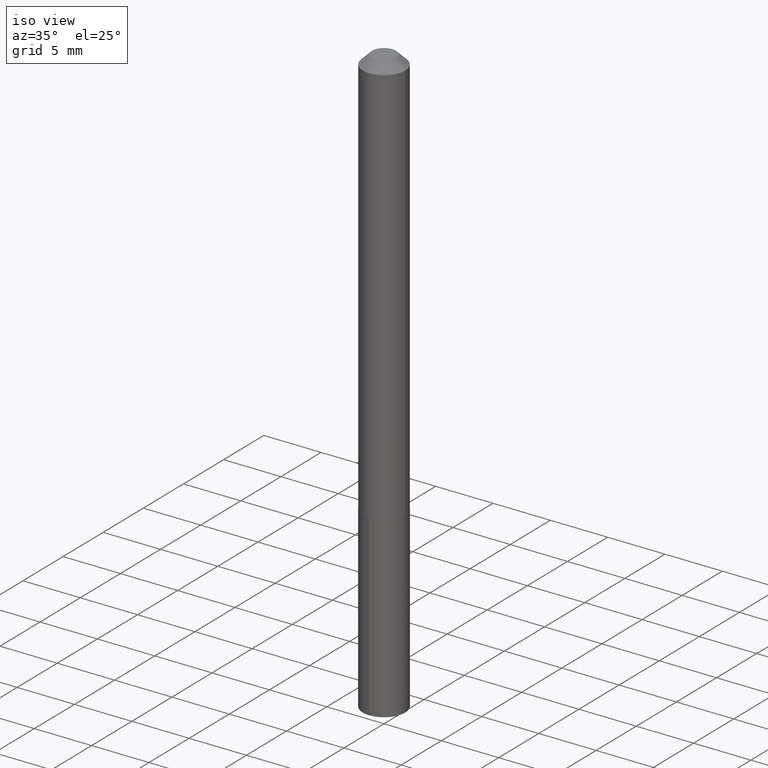
[diagram: clean part render]
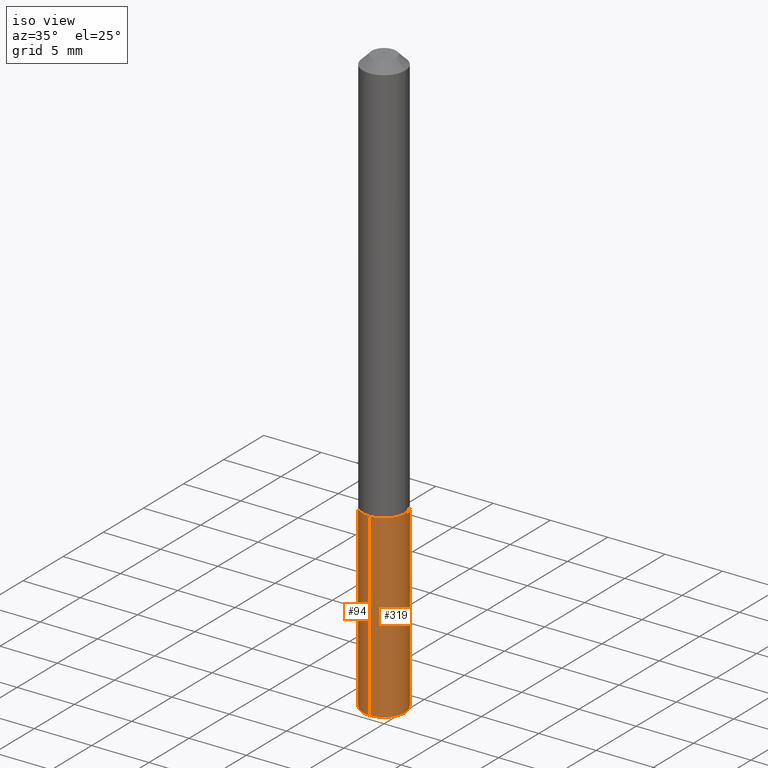
[diagram: same view with one multi-face feature highlighted, each face labeled with its STEP entity id]
A machine part, iso view. The highlighted faces form ONE feature: a constant-radius fillet chain: 2 tangent blend faces with common blend radius 1.8504 mm. The faces share edges in the B-rep.
Their STEP definitions:
[1] entity #94 (Cylinder):
#4 = DIRECTION ( 'NONE',  ( -2.436295008102634133E-29, 3.504618739837450053E-15, 1.000000000000000000 ) ) ;
#5 = DIRECTION ( 'NONE',  ( -2.436295008102633853E-29, 3.504618739837450053E-15, 1.000000000000000000 ) ) ;
#20 = VECTOR ( 'NONE', #33, 39.37007874015748143 ) ;
#21 = ORIENTED_EDGE ( 'NONE', *, *, #104, .T. ) ;
#24 = DIRECTION ( 'NONE',  ( -6.982962677686265133E-15, -1.000000000000000000, 3.749962928845933734E-15 ) ) ;
#28 = VERTEX_POINT ( 'NONE', #297 ) ;
#30 = CARTESIAN_POINT ( 'NONE',  ( -5.087088310694100669E-16, -0.07285000000000491083, -1.405499999999999972 ) ) ;
#33 = DIRECTION ( 'NONE',  ( -2.436295008102634133E-29, 3.504618739837450053E-15, 1.000000000000000000 ) ) ;
#38 = DIRECTION ( 'NONE',  ( -6.982962677686265922E-15, -1.000000000000000000, 3.749962928845934523E-15 ) ) ;
#53 = ORIENTED_EDGE ( 'NONE', *, *, #353, .F. ) ;
#57 = VECTOR ( 'NONE', #4, 39.37007874015748143 ) ;
#70 = DIRECTION ( 'NONE',  ( -2.436295008102633853E-29, 3.504618739837450053E-15, 1.000000000000000000 ) ) ;
#94 = ADVANCED_FACE ( 'NONE', ( #180 ), #131, .T. ) ;
#104 = EDGE_CURVE ( 'NONE', #258, #349, #357, .T. ) ;
#131 = CYLINDRICAL_SURFACE ( 'NONE', #366, 0.07284999999999999809 ) ;
#160 = CARTESIAN_POINT ( 'NONE',  ( 3.437106407093210258E-29, -4.907277021744042169E-15, -1.405500000000000416 ) ) ;
#165 = AXIS2_PLACEMENT_3D ( 'NONE', #160, #70, #38 ) ;
#174 = ORIENTED_EDGE ( 'NONE', *, *, #310, .T. ) ;
#178 = VERTEX_POINT ( 'NONE', #273 ) ;
#180 = FACE_OUTER_BOUND ( 'NONE', #204, .T. ) ;
#185 = CARTESIAN_POINT ( 'NONE',  ( 5.176303830012672873E-16, 0.07284999999999508535, -1.405500000000000638 ) ) ;
#187 = CARTESIAN_POINT ( 'NONE',  ( -5.087088310693950785E-16, -0.07285000000000708964, -2.024230483230165412 ) ) ;
#204 = EDGE_LOOP ( 'NONE', ( #53, #21, #174, #390 ) ) ;
#221 = AXIS2_PLACEMENT_3D ( 'NONE', #360, #5, #24 ) ;
#225 = CARTESIAN_POINT ( 'NONE',  ( 5.176303830012823743E-16, 0.07284999999999293430, -2.024230483230165856 ) ) ;
#226 = CIRCLE ( 'NONE', #165, 0.07284999999999999809 ) ;
#243 = LINE ( 'NONE', #185, #57 ) ;
#258 = VERTEX_POINT ( 'NONE', #225 ) ;
#263 = DIRECTION ( 'NONE',  ( -2.436295008102633853E-29, 3.504618739837450053E-15, 1.000000000000000000 ) ) ;
#273 = CARTESIAN_POINT ( 'NONE',  ( 5.176303830012825715E-16, 0.07284999999999508535, -1.405500000000000638 ) ) ;
#292 = CARTESIAN_POINT ( 'NONE',  ( 3.437106407093210258E-29, -4.907277021744042169E-15, -1.405500000000000416 ) ) ;
#297 = CARTESIAN_POINT ( 'NONE',  ( -5.087088310694100669E-16, -0.07285000000000491083, -1.405499999999999972 ) ) ;
#310 = EDGE_CURVE ( 'NONE', #349, #28, #358, .T. ) ;
#349 = VERTEX_POINT ( 'NONE', #187 ) ;
#353 = EDGE_CURVE ( 'NONE', #258, #178, #243, .T. ) ;
#354 = DIRECTION ( 'NONE',  ( -6.982962677686265922E-15, -1.000000000000000000, 3.749962928845934523E-15 ) ) ;
#357 = CIRCLE ( 'NONE', #221, 0.07285000000000001197 ) ;
#358 = LINE ( 'NONE', #30, #20 ) ;
#360 = CARTESIAN_POINT ( 'NONE',  ( 4.944516394747793359E-29, -7.075691468181160622E-15, -2.024230483230165856 ) ) ;
#366 = AXIS2_PLACEMENT_3D ( 'NONE', #292, #263, #354 ) ;
#382 = EDGE_CURVE ( 'NONE', #178, #28, #226, .T. ) ;
#390 = ORIENTED_EDGE ( 'NONE', *, *, #382, .F. ) ;
[2] entity #319 (Cylinder):
#4 = DIRECTION ( 'NONE',  ( -2.436295008102634133E-29, 3.504618739837450053E-15, 1.000000000000000000 ) ) ;
#6 = CYLINDRICAL_SURFACE ( 'NONE', #93, 0.07284999999999999809 ) ;
#20 = VECTOR ( 'NONE', #33, 39.37007874015748143 ) ;
#28 = VERTEX_POINT ( 'NONE', #297 ) ;
#30 = CARTESIAN_POINT ( 'NONE',  ( -5.087088310694100669E-16, -0.07285000000000491083, -1.405499999999999972 ) ) ;
#33 = DIRECTION ( 'NONE',  ( -2.436295008102634133E-29, 3.504618739837450053E-15, 1.000000000000000000 ) ) ;
#57 = VECTOR ( 'NONE', #4, 39.37007874015748143 ) ;
#93 = AXIS2_PLACEMENT_3D ( 'NONE', #139, #328, #135 ) ;
#96 = CARTESIAN_POINT ( 'NONE',  ( 4.944516394747793359E-29, -7.075691468181160622E-15, -2.024230483230165856 ) ) ;
#112 = EDGE_CURVE ( 'NONE', #28, #178, #137, .T. ) ;
#115 = EDGE_CURVE ( 'NONE', #349, #258, #306, .T. ) ;
#118 = AXIS2_PLACEMENT_3D ( 'NONE', #161, #207, #269 ) ;
#135 = DIRECTION ( 'NONE',  ( -6.982962677686265922E-15, -1.000000000000000000, 3.749962928845934523E-15 ) ) ;
#137 = CIRCLE ( 'NONE', #118, 0.07284999999999999809 ) ;
#139 = CARTESIAN_POINT ( 'NONE',  ( 3.437106407093210258E-29, -4.907277021744042169E-15, -1.405500000000000416 ) ) ;
#159 = AXIS2_PLACEMENT_3D ( 'NONE', #96, #212, #321 ) ;
#161 = CARTESIAN_POINT ( 'NONE',  ( 3.437106407093210258E-29, -4.907277021744042169E-15, -1.405500000000000416 ) ) ;
#178 = VERTEX_POINT ( 'NONE', #273 ) ;
#185 = CARTESIAN_POINT ( 'NONE',  ( 5.176303830012672873E-16, 0.07284999999999508535, -1.405500000000000638 ) ) ;
#187 = CARTESIAN_POINT ( 'NONE',  ( -5.087088310693950785E-16, -0.07285000000000708964, -2.024230483230165412 ) ) ;
#201 = ORIENTED_EDGE ( 'NONE', *, *, #353, .T. ) ;
#207 = DIRECTION ( 'NONE',  ( -2.436295008102633853E-29, 3.504618739837450053E-15, 1.000000000000000000 ) ) ;
#212 = DIRECTION ( 'NONE',  ( -2.436295008102633853E-29, 3.504618739837450053E-15, 1.000000000000000000 ) ) ;
#213 = FACE_OUTER_BOUND ( 'NONE', #239, .T. ) ;
#225 = CARTESIAN_POINT ( 'NONE',  ( 5.176303830012823743E-16, 0.07284999999999293430, -2.024230483230165856 ) ) ;
#239 = EDGE_LOOP ( 'NONE', ( #252, #201, #261, #327 ) ) ;
#243 = LINE ( 'NONE', #185, #57 ) ;
#252 = ORIENTED_EDGE ( 'NONE', *, *, #115, .T. ) ;
#258 = VERTEX_POINT ( 'NONE', #225 ) ;
#261 = ORIENTED_EDGE ( 'NONE', *, *, #112, .F. ) ;
#269 = DIRECTION ( 'NONE',  ( -6.982962677686265922E-15, -1.000000000000000000, 3.749962928845934523E-15 ) ) ;
#273 = CARTESIAN_POINT ( 'NONE',  ( 5.176303830012825715E-16, 0.07284999999999508535, -1.405500000000000638 ) ) ;
#297 = CARTESIAN_POINT ( 'NONE',  ( -5.087088310694100669E-16, -0.07285000000000491083, -1.405499999999999972 ) ) ;
#306 = CIRCLE ( 'NONE', #159, 0.07285000000000001197 ) ;
#310 = EDGE_CURVE ( 'NONE', #349, #28, #358, .T. ) ;
#319 = ADVANCED_FACE ( 'NONE', ( #213 ), #6, .T. ) ;
#321 = DIRECTION ( 'NONE',  ( -6.982962677686265133E-15, -1.000000000000000000, 3.749962928845933734E-15 ) ) ;
#327 = ORIENTED_EDGE ( 'NONE', *, *, #310, .F. ) ;
#328 = DIRECTION ( 'NONE',  ( -2.436295008102633853E-29, 3.504618739837450053E-15, 1.000000000000000000 ) ) ;
#349 = VERTEX_POINT ( 'NONE', #187 ) ;
#353 = EDGE_CURVE ( 'NONE', #258, #178, #243, .T. ) ;
#358 = LINE ( 'NONE', #30, #20 ) ;